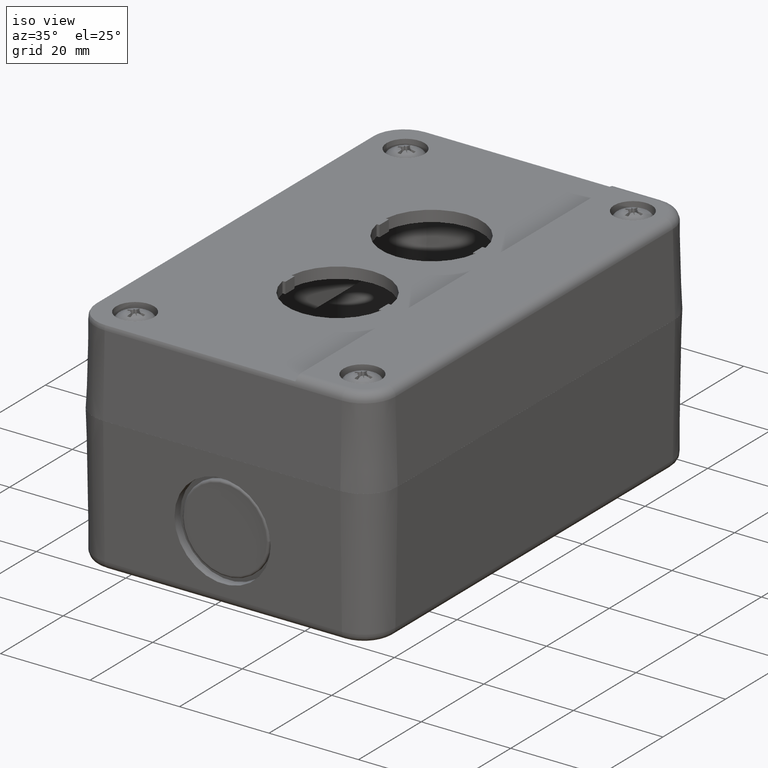
[diagram: clean part render]
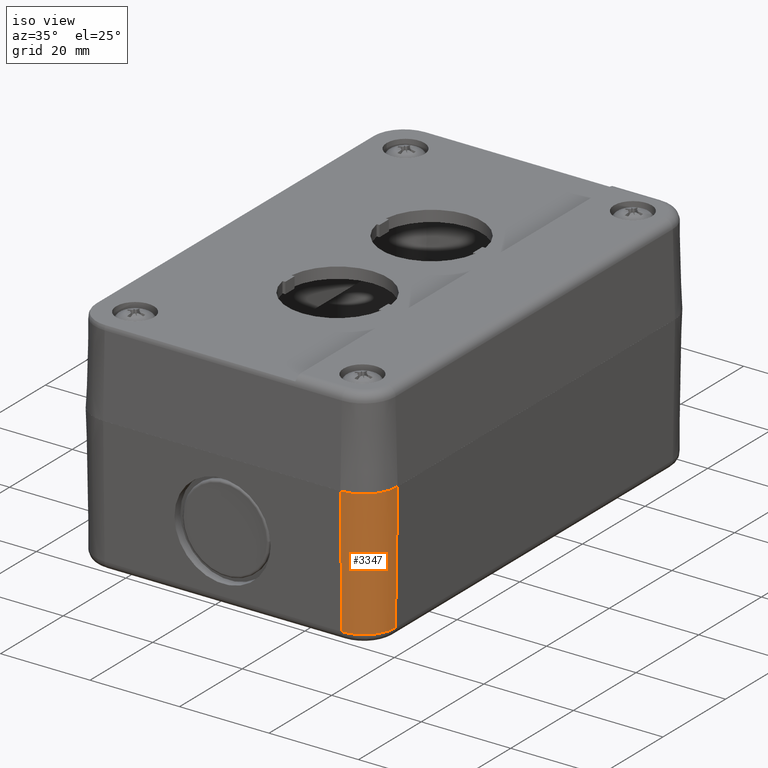
[diagram: same view with one face highlighted and labeled with its STEP entity id]
A machine part, iso view. The second image highlights one B-rep face of the part: STEP entity #3347.
In plain terms, the highlighted conical surface has half-angle 1 deg.
Its self-contained STEP definition (entity closure, byte-faithful):
#2997=CARTESIAN_POINT('',(17.661751566902900,-16.327564896536401,1.965095187125433));
#2998=VERTEX_POINT('',#2997);
#3039=CARTESIAN_POINT('',(10.627450702821495,-23.361865760617803,1.965095187125425));
#3040=VERTEX_POINT('',#3039);
#3058=CARTESIAN_POINT('',(10.627450702821495,-16.327564896536401,1.965095187125425));
#3059=DIRECTION('',(0.0,0.0,-1.000000000000000));
#3060=DIRECTION('',(0.707106781186548,-0.707106781186548,0.0));
#3061=AXIS2_PLACEMENT_3D('',#3058,#3059,#3060);
#3062=CIRCLE('',#3061,7.034300864081389);
#3063=EDGE_CURVE('',#2998,#3040,#3062,.T.);
#3294=CARTESIAN_POINT('',(10.627450702821495,-23.861689883339857,30.600000000000005));
#3295=VERTEX_POINT('',#3294);
#3296=CARTESIAN_POINT('',(10.627450702821495,-23.361865760617803,1.965095187125425));
#3297=DIRECTION('',(0.0,-0.017452406437283,0.999847695156391));
#3298=VECTOR('',#3297,28.639266711912207);
#3299=LINE('',#3296,#3298);
#3300=EDGE_CURVE('',#3040,#3295,#3299,.T.);
#3323=CARTESIAN_POINT('',(10.627450702821495,-16.327564896536401,0.0));
#3324=DIRECTION('',(0.0,0.0,1.0));
#3325=DIRECTION('',(0.0,-1.0,0.0));
#3326=AXIS2_PLACEMENT_3D('',#3323,#3324,#3325);
#3327=CONICAL_SURFACE('',#3326,6.999999999999986,1.0);
#3328=ORIENTED_EDGE('',*,*,#3063,.F.);
#3329=CARTESIAN_POINT('',(18.161575689624939,-16.327564896536401,30.600000000000005));
#3330=VERTEX_POINT('',#3329);
#3331=CARTESIAN_POINT('',(17.661751566902900,-16.327564896536401,1.965095187125433));
#3332=DIRECTION('',(0.017452406437283,0.0,0.999847695156391));
#3333=VECTOR('',#3332,28.639266711912200);
#3334=LINE('',#3331,#3333);
#3335=EDGE_CURVE('',#2998,#3330,#3334,.T.);
#3336=ORIENTED_EDGE('',*,*,#3335,.T.);
#3337=CARTESIAN_POINT('',(10.627450702821495,-16.327564896536401,30.600000000000005));
#3338=DIRECTION('',(0.0,0.0,-1.0));
#3339=DIRECTION('',(0.0,-1.0,0.0));
#3340=AXIS2_PLACEMENT_3D('',#3337,#3338,#3339);
#3341=CIRCLE('',#3340,7.534124986803445);
#3342=EDGE_CURVE('',#3330,#3295,#3341,.T.);
#3343=ORIENTED_EDGE('',*,*,#3342,.T.);
#3344=ORIENTED_EDGE('',*,*,#3300,.F.);
#3345=EDGE_LOOP('',(#3328,#3336,#3343,#3344));
#3346=FACE_OUTER_BOUND('',#3345,.T.);
#3347=ADVANCED_FACE('',(#3346),#3327,.T.);